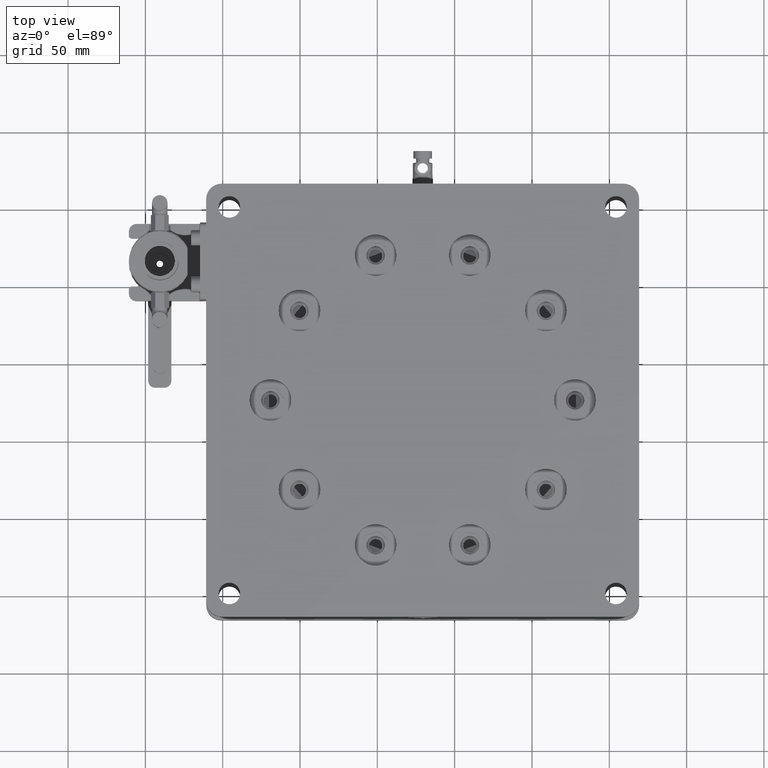
[diagram: clean part render]
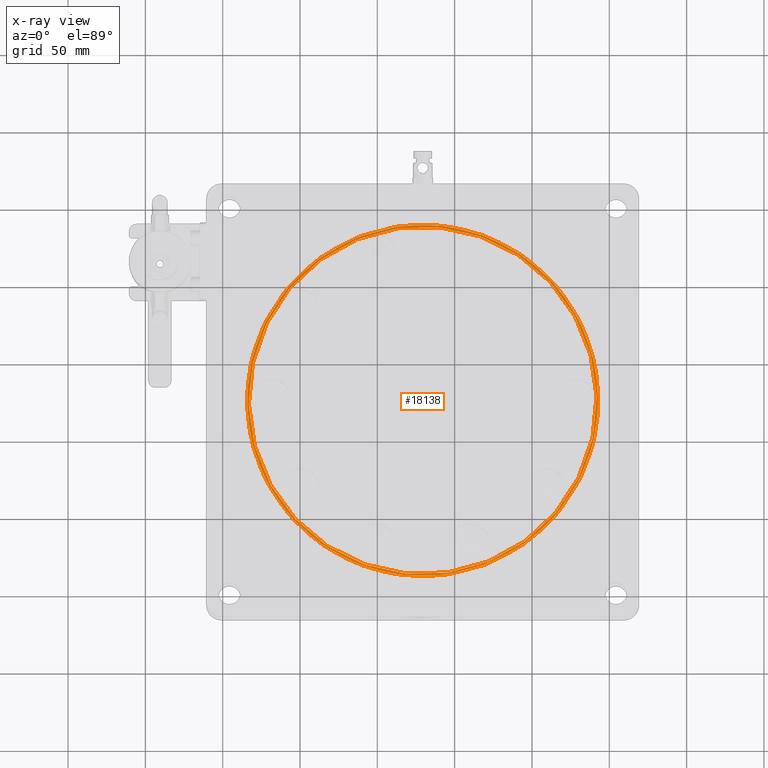
[diagram: x-ray — body ghosted, one internal face saturated and labeled with its STEP entity id]
A machine part, top view, then the same camera in x-ray: the body is ghosted and one INTERNAL B-rep face — a face not visible from any outside direction — is saturated and labeled: STEP entity #18138.
In plain terms, the highlighted face is a freeform B-spline surface patch.
Its self-contained STEP definition (entity closure, byte-faithful):
#102 = CIRCLE ( 'NONE', #8922, 112.5000000000000284 ) ;
#1676 = CARTESIAN_POINT ( 'NONE',  ( 12.37624692576860674, -250.7965455226364213, 221.9999999999999716 ) ) ;
#1872 = CARTESIAN_POINT ( 'NONE',  ( 378.7562821262081343, 15.90612758288670214, 223.0000000000000000 ) ) ;
#3798 = VERTEX_POINT ( 'NONE', #31978 ) ;
#4006 = DIRECTION ( 'NONE',  ( -0.000000000000000000, -0.000000000000000000, -1.000000000000000000 ) ) ;
#4432 = CARTESIAN_POINT ( 'NONE',  ( -121.0510053446251533, -67.14968779952504008, 222.5857864376269220 ) ) ;
#6583 = CARTESIAN_POINT ( 'NONE',  ( 129.3094785136830751, -25.54586439068695825, 222.0000000000000000 ) ) ;
#7206 = CARTESIAN_POINT ( 'NONE',  ( 13.40649566222595901, -248.8119580236765103, 223.0000000000000000 ) ) ;
#7345 = EDGE_CURVE ( 'NONE', #3798, #3798, #102, .T. ) ;
#7399 = CARTESIAN_POINT ( 'NONE',  ( 63.18363763077866935, 65.46854747649379647, 223.0000000000000000 ) ) ;
#7797 = CARTESIAN_POINT ( 'NONE',  ( 62.59585237848617822, 66.27756447086871106, 222.0000000000000000 ) ) ;
#8279 = ORIENTED_EDGE ( 'NONE', *, *, #7345, .F. ) ;
#8922 = AXIS2_PLACEMENT_3D ( 'NONE', #27645, #36912, #24117 ) ;
#9965 = ORIENTED_EDGE ( 'NONE', *, *, #25739, .T. ) ;
#10379 = CARTESIAN_POINT ( 'NONE',  ( 245.2124613651401717, 197.7202292423025938, 223.0000000000000000 ) ) ;
#10765 = CARTESIAN_POINT ( 'NONE',  ( 195.4353193965874880, -116.5602762578677130, 223.0000000000000000 ) ) ;
#11600 = AXIS2_PLACEMENT_3D ( 'NONE', #6583, #4006, #16064 ) ;
#13154 = CARTESIAN_POINT ( 'NONE',  ( 62.59585237848617822, 66.27756447086871106, 222.5857864376269220 ) ) ;
#13346 = CARTESIAN_POINT ( 'NONE',  ( 379.6699623719912324, 16.05795901815113069, 221.9999999999999716 ) ) ;
#13929 = CARTESIAN_POINT ( 'NONE',  ( 377.4641431309489690, 15.69140550794109501, 223.0000000000000000 ) ) ;
#16064 = DIRECTION ( 'NONE',  ( 1.000000000000000000, 0.000000000000000000, 0.000000000000000000 ) ) ;
#16695 = FACE_OUTER_BOUND ( 'NONE', #34830, .T. ) ;
#17492 = VERTEX_POINT ( 'NONE', #28958 ) ;
#18138 = ADVANCED_FACE ( 'NONE', ( #16695, #22626 ), #20217, .F. ) ;
#19267 = CARTESIAN_POINT ( 'NONE',  ( -118.8451861035828614, -66.78313428931501505, 223.0000000000000000 ) ) ;
#20048 = CARTESIAN_POINT ( 'NONE',  ( 246.2427101015975097, 199.7048167412625332, 221.9999999999999716 ) ) ;
#20217 =( BOUNDED_SURFACE ( )  B_SPLINE_SURFACE ( 3, 3, ( 
 ( #35054, #20048, #13346, #28548, #1676, #25198, #7797 ),
 ( #13154, #22827, #29127, #32082, #31887, #4432, #25778 ),
 ( #28932, #37221, #1872, #37804, #22237, #34261, #34457 ),
 ( #7399, #10379, #13929, #10765, #7206, #19267, #34645 ) ),
 .UNSPECIFIED., .F., .T., .F. ) 
 B_SPLINE_SURFACE_WITH_KNOTS ( ( 4, 4 ),
 ( 4, 3, 4 ),
 ( 0.000000000000000000, 1.000000000000000000 ),
 ( 0.000000000000000000, 0.5000000000000000000, 1.000000000000000000 ),
 .UNSPECIFIED. ) 
 GEOMETRIC_REPRESENTATION_ITEM ( )  RATIONAL_B_SPLINE_SURFACE ( (
 ( 1.000000000000000000, 0.3333333333333333148, 0.3333333333333333148, 1.000000000000000000, 0.3333333333333333148, 0.3333333333333333148, 1.000000000000000000),
 ( 0.8047378541243676020, 0.2682459513747891822, 0.2682459513747891822, 0.8047378541243676020, 0.2682459513747891822, 0.2682459513747891822, 0.8047378541243676020),
 ( 0.8047378541243676020, 0.2682459513747891822, 0.2682459513747891822, 0.8047378541243676020, 0.2682459513747891822, 0.2682459513747891822, 0.8047378541243676020),
 ( 1.000000000000000000, 0.3333333333333333148, 0.3333333333333333148, 1.000000000000000000, 0.3333333333333333148, 0.3333333333333333148, 1.000000000000000000) ) ) 
 REPRESENTATION_ITEM ( '' )  SURFACE ( )  );
#22237 = CARTESIAN_POINT ( 'NONE',  ( 12.80298992502698674, -249.9745024648511844, 223.0000000000000000 ) ) ;
#22626 = FACE_OUTER_BOUND ( 'NONE', #38246, .T. ) ;
#22827 = CARTESIAN_POINT ( 'NONE',  ( 246.2427101015975666, 199.7048167412625048, 222.5857864376269220 ) ) ;
#24117 = DIRECTION ( 'NONE',  ( -0.5877852522924836842, 0.8090169943749396797, 0.000000000000000000 ) ) ;
#25198 = CARTESIAN_POINT ( 'NONE',  ( -121.0510053446251533, -67.14968779952505429, 221.9999999999999716 ) ) ;
#25739 = EDGE_CURVE ( 'NONE', #17492, #17492, #28018, .T. ) ;
#25778 = CARTESIAN_POINT ( 'NONE',  ( 62.59585237848617822, 66.27756447086871106, 222.5857864376269220 ) ) ;
#27645 = CARTESIAN_POINT ( 'NONE',  ( 129.3094785136830751, -25.54586439068695825, 223.0000000000000000 ) ) ;
#28018 = CIRCLE ( 'NONE', #11600, 113.5000000000000142 ) ;
#28548 = CARTESIAN_POINT ( 'NONE',  ( 196.0231046488799507, -117.3692932522426275, 222.0000000000000000 ) ) ;
#28932 = CARTESIAN_POINT ( 'NONE',  ( 62.83932100174861546, 65.94245865960830599, 222.9999999999999716 ) ) ;
#28958 = CARTESIAN_POINT ( 'NONE',  ( 242.8094785136831035, -25.54586439068695825, 222.0000000000000000 ) ) ;
#29127 = CARTESIAN_POINT ( 'NONE',  ( 379.6699623719913461, 16.05795901815113069, 222.5857864376269220 ) ) ;
#31887 = CARTESIAN_POINT ( 'NONE',  ( 12.37624692576860852, -250.7965455226364213, 222.5857864376269220 ) ) ;
#31978 = CARTESIAN_POINT ( 'NONE',  ( 63.18363763077865514, 65.46854747649378226, 223.0000000000000000 ) ) ;
#32082 = CARTESIAN_POINT ( 'NONE',  ( 196.0231046488799791, -117.3692932522426560, 222.5857864376269220 ) ) ;
#34261 = CARTESIAN_POINT ( 'NONE',  ( -120.1373250988419699, -66.99785636426061330, 223.0000000000000000 ) ) ;
#34457 = CARTESIAN_POINT ( 'NONE',  ( 62.83932100174861546, 65.94245865960830599, 222.9999999999999716 ) ) ;
#34645 = CARTESIAN_POINT ( 'NONE',  ( 63.18363763077866935, 65.46854747649379647, 223.0000000000000000 ) ) ;
#34830 = EDGE_LOOP ( 'NONE', ( #8279 ) ) ;
#35054 = CARTESIAN_POINT ( 'NONE',  ( 62.59585237848617822, 66.27756447086871106, 222.0000000000000000 ) ) ;
#36912 = DIRECTION ( 'NONE',  ( 0.000000000000000000, 0.000000000000000000, -1.000000000000000000 ) ) ;
#37221 = CARTESIAN_POINT ( 'NONE',  ( 245.8159671023391297, 198.8827736834772395, 223.0000000000000000 ) ) ;
#37804 = CARTESIAN_POINT ( 'NONE',  ( 195.7796360256175490, -117.0341874409822225, 222.9999999999999716 ) ) ;
#38246 = EDGE_LOOP ( 'NONE', ( #9965 ) ) ;